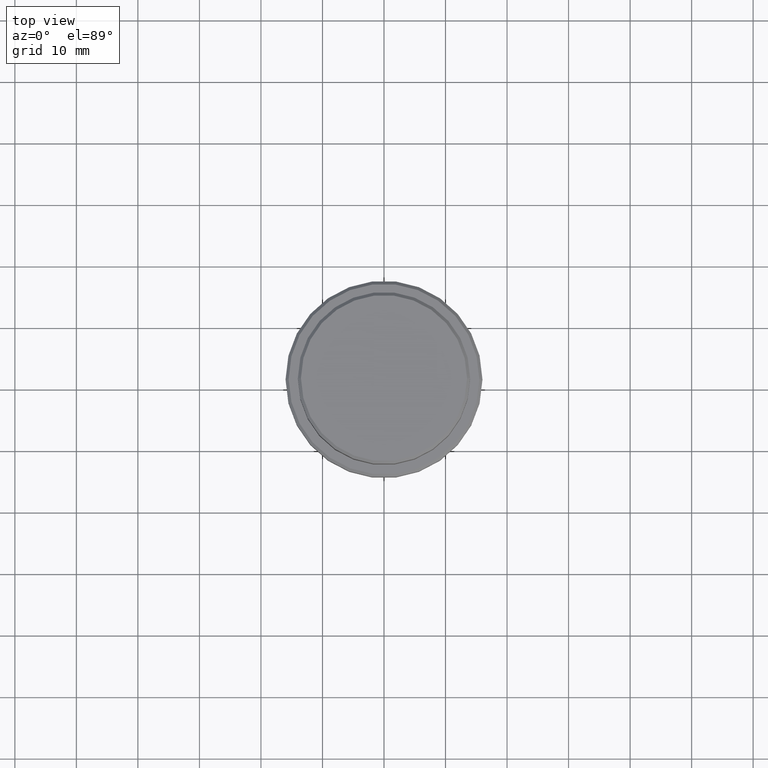
[diagram: clean part render]
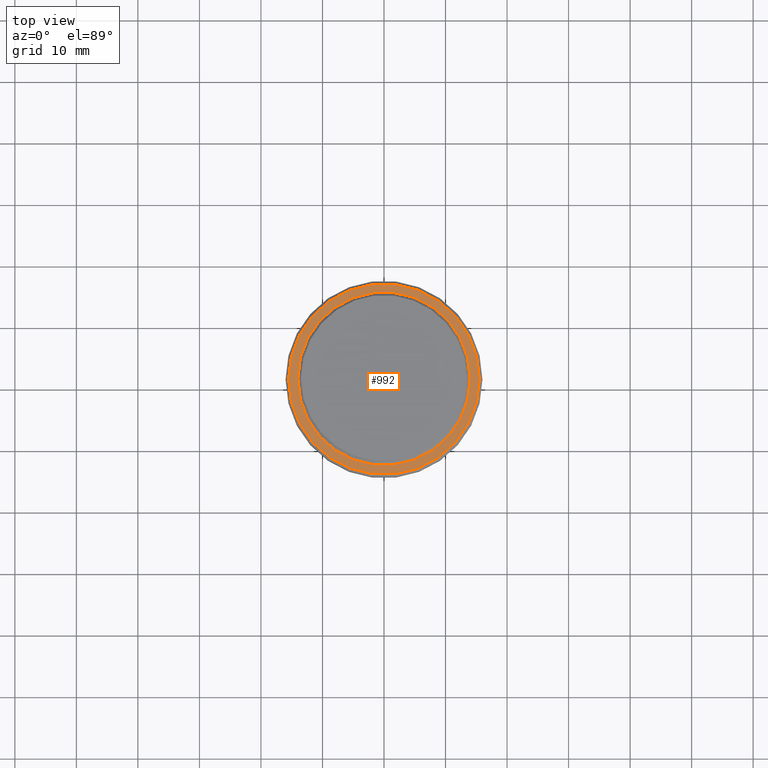
[diagram: same view with one face highlighted and labeled with its STEP entity id]
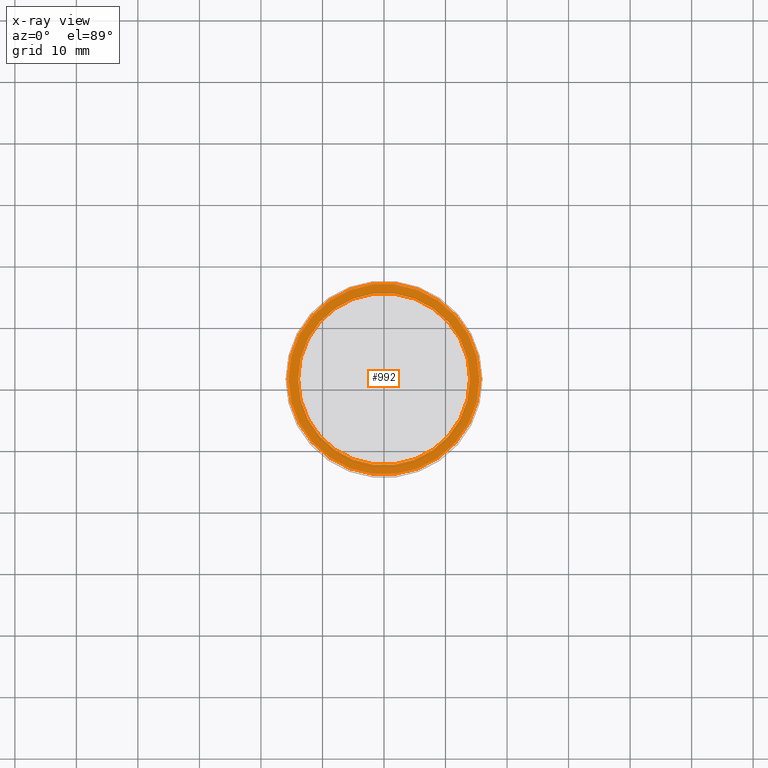
[diagram: x-ray of the same camera — body ghosted, the highlighted face saturated]
A machine part, top view. The second image highlights one B-rep face of the part: STEP entity #992.
The next image is the same camera in x-ray: the body ghosted, the highlighted face saturated — about 0% of this face is hidden behind the body in this view.
In plain terms, the highlighted planar face has unit normal (0, -0, 1).
Its self-contained STEP definition (entity closure, byte-faithful):
#6 = PLANE ( 'NONE',  #453 ) ;
#22 = CARTESIAN_POINT ( 'NONE',  ( -15.49999999999998579, 0.000000000000000000, -10.00000000000000178 ) ) ;
#23 = CARTESIAN_POINT ( 'NONE',  ( 0.000000000000000000, 0.000000000000000000, -10.00000000000000178 ) ) ;
#27 = DIRECTION ( 'NONE',  ( 0.000000000000000000, -0.000000000000000000, 1.000000000000000000 ) ) ;
#30 = CIRCLE ( 'NONE', #1114, 15.49999999999998579 ) ;
#33 = CIRCLE ( 'NONE', #732, 15.49999999999998579 ) ;
#92 = VERTEX_POINT ( 'NONE', #367 ) ;
#153 = VERTEX_POINT ( 'NONE', #22 ) ;
#255 = EDGE_CURVE ( 'NONE', #1324, #92, #1091, .T. ) ;
#257 = DIRECTION ( 'NONE',  ( 1.000000000000000000, 0.000000000000000000, 0.000000000000000000 ) ) ;
#281 = DIRECTION ( 'NONE',  ( -0.000000000000000000, -0.000000000000000000, 1.000000000000000000 ) ) ;
#283 = VERTEX_POINT ( 'NONE', #1407 ) ;
#367 = CARTESIAN_POINT ( 'NONE',  ( -13.99999999999998579, 1.714505518806292863E-15, -10.00000000000000178 ) ) ;
#424 = EDGE_CURVE ( 'NONE', #283, #153, #30, .T. ) ;
#441 = ORIENTED_EDGE ( 'NONE', *, *, #1413, .T. ) ;
#453 = AXIS2_PLACEMENT_3D ( 'NONE', #573, #27, #257 ) ;
#456 = CIRCLE ( 'NONE', #1023, 13.99999999999998579 ) ;
#474 = DIRECTION ( 'NONE',  ( 0.000000000000000000, 0.000000000000000000, -1.000000000000000000 ) ) ;
#573 = CARTESIAN_POINT ( 'NONE',  ( 0.000000000000000000, 13.49999999999998579, -10.00000000000000178 ) ) ;
#619 = EDGE_LOOP ( 'NONE', ( #1184, #1333 ) ) ;
#624 = CARTESIAN_POINT ( 'NONE',  ( 0.000000000000000000, 0.000000000000000000, -10.00000000000000178 ) ) ;
#688 = ORIENTED_EDGE ( 'NONE', *, *, #255, .T. ) ;
#695 = DIRECTION ( 'NONE',  ( 1.000000000000000000, 0.000000000000000000, 0.000000000000000000 ) ) ;
#718 = EDGE_CURVE ( 'NONE', #153, #283, #33, .T. ) ;
#732 = AXIS2_PLACEMENT_3D ( 'NONE', #624, #281, #1272 ) ;
#835 = AXIS2_PLACEMENT_3D ( 'NONE', #967, #1288, #1394 ) ;
#967 = CARTESIAN_POINT ( 'NONE',  ( 0.000000000000000000, 0.000000000000000000, -10.00000000000000178 ) ) ;
#992 = ADVANCED_FACE ( 'NONE', ( #1161, #1197 ), #6, .T. ) ;
#1012 = DIRECTION ( 'NONE',  ( -0.000000000000000000, -0.000000000000000000, 1.000000000000000000 ) ) ;
#1023 = AXIS2_PLACEMENT_3D ( 'NONE', #23, #474, #1118 ) ;
#1027 = EDGE_LOOP ( 'NONE', ( #688, #441 ) ) ;
#1091 = CIRCLE ( 'NONE', #835, 13.99999999999998579 ) ;
#1114 = AXIS2_PLACEMENT_3D ( 'NONE', #1335, #1012, #695 ) ;
#1118 = DIRECTION ( 'NONE',  ( 1.000000000000000000, 0.000000000000000000, 0.000000000000000000 ) ) ;
#1161 = FACE_OUTER_BOUND ( 'NONE', #619, .T. ) ;
#1184 = ORIENTED_EDGE ( 'NONE', *, *, #718, .T. ) ;
#1197 = FACE_BOUND ( 'NONE', #1027, .T. ) ;
#1272 = DIRECTION ( 'NONE',  ( 1.000000000000000000, 0.000000000000000000, 0.000000000000000000 ) ) ;
#1288 = DIRECTION ( 'NONE',  ( 0.000000000000000000, 0.000000000000000000, -1.000000000000000000 ) ) ;
#1309 = CARTESIAN_POINT ( 'NONE',  ( 13.99999999999998579, 0.000000000000000000, -10.00000000000000178 ) ) ;
#1324 = VERTEX_POINT ( 'NONE', #1309 ) ;
#1333 = ORIENTED_EDGE ( 'NONE', *, *, #424, .T. ) ;
#1335 = CARTESIAN_POINT ( 'NONE',  ( 0.000000000000000000, 0.000000000000000000, -10.00000000000000178 ) ) ;
#1394 = DIRECTION ( 'NONE',  ( 1.000000000000000000, 0.000000000000000000, 0.000000000000000000 ) ) ;
#1407 = CARTESIAN_POINT ( 'NONE',  ( 15.49999999999998579, 1.928818708657080161E-15, -10.00000000000000178 ) ) ;
#1413 = EDGE_CURVE ( 'NONE', #92, #1324, #456, .T. ) ;